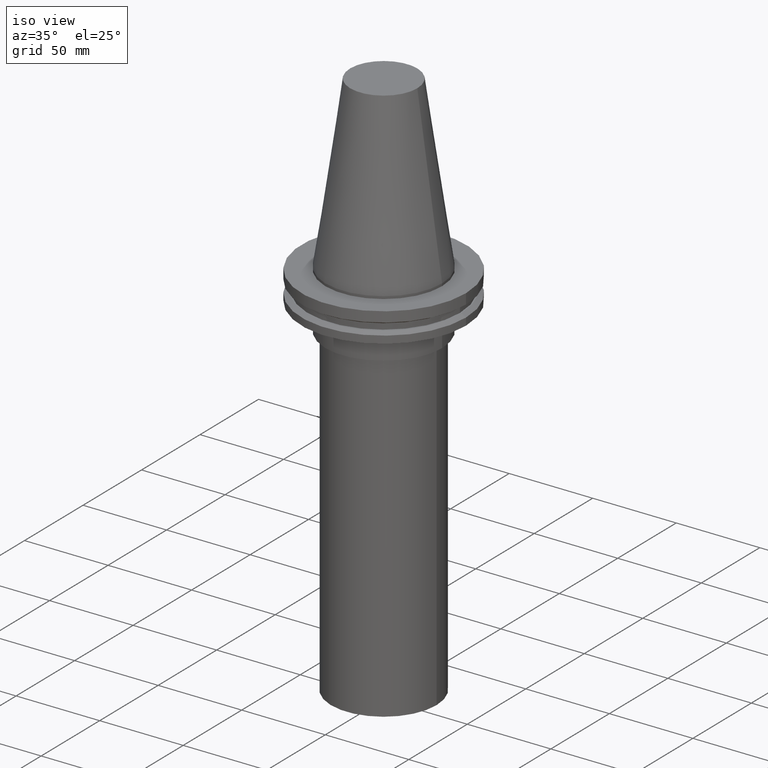
[diagram: clean part render]
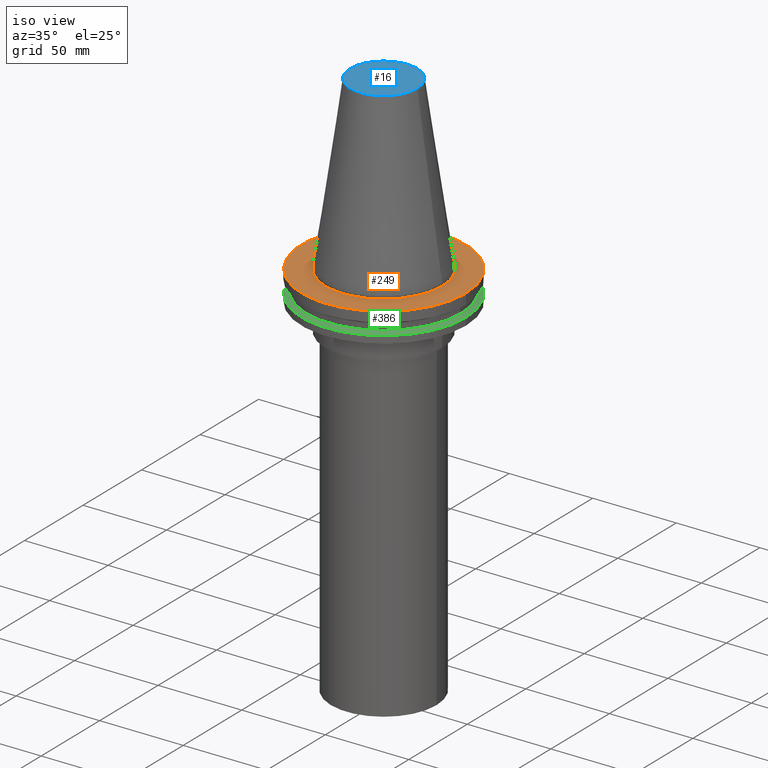
[diagram: same view with three faces highlighted in distinct colors, each labeled with its STEP entity id]
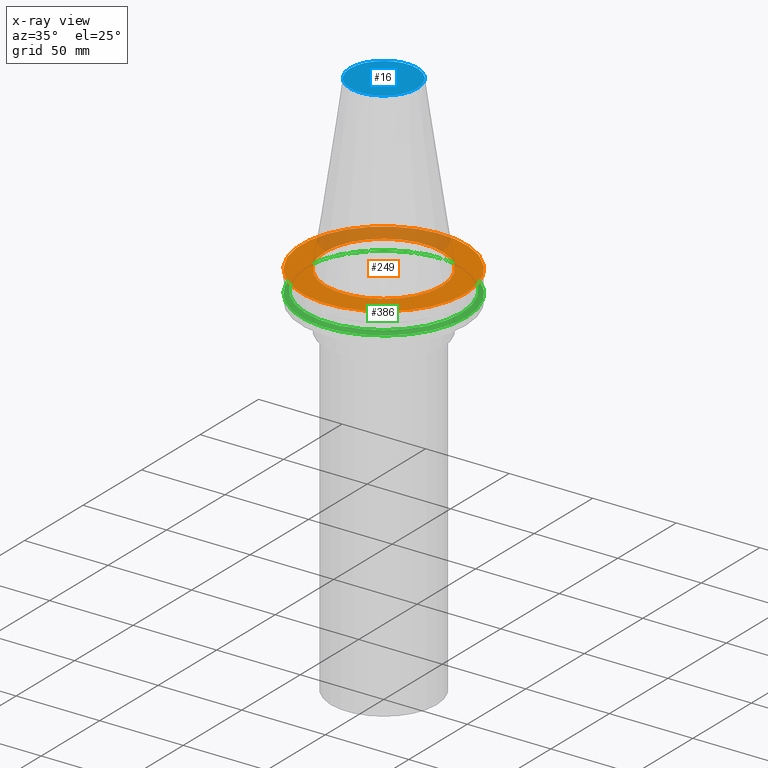
[diagram: x-ray of the same camera — body ghosted, the three highlighted faces saturated]
A machine part, iso view with three faces highlighted in distinct colors.
The next image is the same camera in x-ray (body ghosted, the three faces saturated) — at least one of them is partly hidden behind the body in this view.
Their STEP definitions:

[orange] entity #249 — the highlighted planar face has unit normal (0, 0, -1).
#3 = PLANE ( 'NONE',  #220 ) ;
#54 = EDGE_LOOP ( 'NONE', ( #167 ) ) ;
#65 = AXIS2_PLACEMENT_3D ( 'NONE', #383, #376, #343 ) ;
#80 = AXIS2_PLACEMENT_3D ( 'NONE', #289, #389, #90 ) ;
#90 = DIRECTION ( 'NONE',  ( 1.000000000000000000, 0.000000000000000000, 0.000000000000000000 ) ) ;
#92 = CARTESIAN_POINT ( 'NONE',  ( 34.92499999999999005, 0.000000000000000000, -1.499999999999987566 ) ) ;
#127 = FACE_OUTER_BOUND ( 'NONE', #382, .T. ) ;
#130 = DIRECTION ( 'NONE',  ( 0.000000000000000000, 0.000000000000000000, -1.000000000000000000 ) ) ;
#145 = EDGE_CURVE ( 'NONE', #239, #239, #243, .T. ) ;
#159 = VERTEX_POINT ( 'NONE', #92 ) ;
#162 = FACE_BOUND ( 'NONE', #54, .T. ) ;
#167 = ORIENTED_EDGE ( 'NONE', *, *, #300, .F. ) ;
#190 = ORIENTED_EDGE ( 'NONE', *, *, #145, .T. ) ;
#220 = AXIS2_PLACEMENT_3D ( 'NONE', #265, #130, #234 ) ;
#234 = DIRECTION ( 'NONE',  ( -1.000000000000000000, 0.000000000000000000, -0.000000000000000000 ) ) ;
#239 = VERTEX_POINT ( 'NONE', #392 ) ;
#243 = CIRCLE ( 'NONE', #65, 49.21499999999999631 ) ;
#247 = CIRCLE ( 'NONE', #80, 34.92499999999999005 ) ;
#249 = ADVANCED_FACE ( 'NONE', ( #162, #127 ), #3, .F. ) ;
#265 = CARTESIAN_POINT ( 'NONE',  ( 0.000000000000000000, 49.21499999999999631, -1.499999999999992895 ) ) ;
#289 = CARTESIAN_POINT ( 'NONE',  ( 0.000000000000000000, 0.000000000000000000, -1.499999999999987566 ) ) ;
#300 = EDGE_CURVE ( 'NONE', #159, #159, #247, .T. ) ;
#343 = DIRECTION ( 'NONE',  ( 1.000000000000000000, 0.000000000000000000, 0.000000000000000000 ) ) ;
#376 = DIRECTION ( 'NONE',  ( -0.000000000000000000, -0.000000000000000000, 1.000000000000000000 ) ) ;
#382 = EDGE_LOOP ( 'NONE', ( #190 ) ) ;
#383 = CARTESIAN_POINT ( 'NONE',  ( 0.000000000000000000, 0.000000000000000000, -1.499999999999987566 ) ) ;
#389 = DIRECTION ( 'NONE',  ( -0.000000000000000000, -0.000000000000000000, 1.000000000000000000 ) ) ;
#392 = CARTESIAN_POINT ( 'NONE',  ( 49.21499999999999631, 0.000000000000000000, -1.499999999999987566 ) ) ;

[blue] entity #16 — the highlighted planar face has unit normal (0, 0, -1).
#16 = ADVANCED_FACE ( 'NONE', ( #148 ), #353, .F. ) ;
#23 = AXIS2_PLACEMENT_3D ( 'NONE', #260, #390, #118 ) ;
#25 = EDGE_CURVE ( 'NONE', #292, #292, #99, .T. ) ;
#99 = CIRCLE ( 'NONE', #23, 20.10819343178871321 ) ;
#118 = DIRECTION ( 'NONE',  ( 1.000000000000000000, 0.000000000000000000, 0.000000000000000000 ) ) ;
#148 = FACE_OUTER_BOUND ( 'NONE', #357, .T. ) ;
#151 = CARTESIAN_POINT ( 'NONE',  ( 0.000000000000000000, 20.10819343178871321, 101.5999999999999943 ) ) ;
#198 = ORIENTED_EDGE ( 'NONE', *, *, #25, .T. ) ;
#258 = DIRECTION ( 'NONE',  ( 0.000000000000000000, 0.000000000000000000, -1.000000000000000000 ) ) ;
#260 = CARTESIAN_POINT ( 'NONE',  ( 0.000000000000000000, 0.000000000000000000, 101.5999999999999801 ) ) ;
#262 = CARTESIAN_POINT ( 'NONE',  ( 20.10819343178871321, 0.000000000000000000, 101.5999999999999801 ) ) ;
#292 = VERTEX_POINT ( 'NONE', #262 ) ;
#337 = AXIS2_PLACEMENT_3D ( 'NONE', #151, #258, #361 ) ;
#353 = PLANE ( 'NONE',  #337 ) ;
#357 = EDGE_LOOP ( 'NONE', ( #198 ) ) ;
#361 = DIRECTION ( 'NONE',  ( -1.000000000000000000, 0.000000000000000000, -0.000000000000000000 ) ) ;
#390 = DIRECTION ( 'NONE',  ( -0.000000000000000000, -0.000000000000000000, 1.000000000000000000 ) ) ;

[green] entity #386 — the highlighted conical surface has half-angle 60 deg.
#5 = VERTEX_POINT ( 'NONE', #182 ) ;
#8 = VERTEX_POINT ( 'NONE', #242 ) ;
#29 = CARTESIAN_POINT ( 'NONE',  ( 0.000000000000000000, 0.000000000000000000, -14.65761014474876944 ) ) ;
#96 = FACE_OUTER_BOUND ( 'NONE', #305, .T. ) ;
#153 = DIRECTION ( 'NONE',  ( -0.000000000000000000, -0.000000000000000000, 1.000000000000000000 ) ) ;
#171 = EDGE_LOOP ( 'NONE', ( #205 ) ) ;
#182 = CARTESIAN_POINT ( 'NONE',  ( 49.21499999999998920, 0.000000000000000000, -14.65761014474876944 ) ) ;
#187 = CARTESIAN_POINT ( 'NONE',  ( 0.000000000000000000, 0.000000000000000000, -13.05499999999999794 ) ) ;
#191 = CIRCLE ( 'NONE', #233, 46.43919780457007818 ) ;
#205 = ORIENTED_EDGE ( 'NONE', *, *, #372, .F. ) ;
#222 = AXIS2_PLACEMENT_3D ( 'NONE', #236, #298, #326 ) ;
#233 = AXIS2_PLACEMENT_3D ( 'NONE', #187, #153, #330 ) ;
#236 = CARTESIAN_POINT ( 'NONE',  ( 0.000000000000000000, 0.000000000000000000, -14.65761014474876944 ) ) ;
#242 = CARTESIAN_POINT ( 'NONE',  ( 46.43919780457007818, 0.000000000000000000, -13.05499999999999794 ) ) ;
#244 = ORIENTED_EDGE ( 'NONE', *, *, #355, .T. ) ;
#263 = FACE_BOUND ( 'NONE', #171, .T. ) ;
#282 = CONICAL_SURFACE ( 'NONE', #222, 49.21499999999998920, 1.047197551196554333 ) ;
#291 = DIRECTION ( 'NONE',  ( 1.000000000000000000, 0.000000000000000000, 0.000000000000000000 ) ) ;
#298 = DIRECTION ( 'NONE',  ( 0.000000000000000000, 0.000000000000000000, -1.000000000000000000 ) ) ;
#305 = EDGE_LOOP ( 'NONE', ( #244 ) ) ;
#326 = DIRECTION ( 'NONE',  ( -1.000000000000000000, 0.000000000000000000, 0.000000000000000000 ) ) ;
#330 = DIRECTION ( 'NONE',  ( 1.000000000000000000, 0.000000000000000000, 0.000000000000000000 ) ) ;
#339 = AXIS2_PLACEMENT_3D ( 'NONE', #29, #395, #291 ) ;
#355 = EDGE_CURVE ( 'NONE', #5, #5, #394, .T. ) ;
#372 = EDGE_CURVE ( 'NONE', #8, #8, #191, .T. ) ;
#386 = ADVANCED_FACE ( 'NONE', ( #263, #96 ), #282, .T. ) ;
#394 = CIRCLE ( 'NONE', #339, 49.21499999999998920 ) ;
#395 = DIRECTION ( 'NONE',  ( -0.000000000000000000, -0.000000000000000000, 1.000000000000000000 ) ) ;